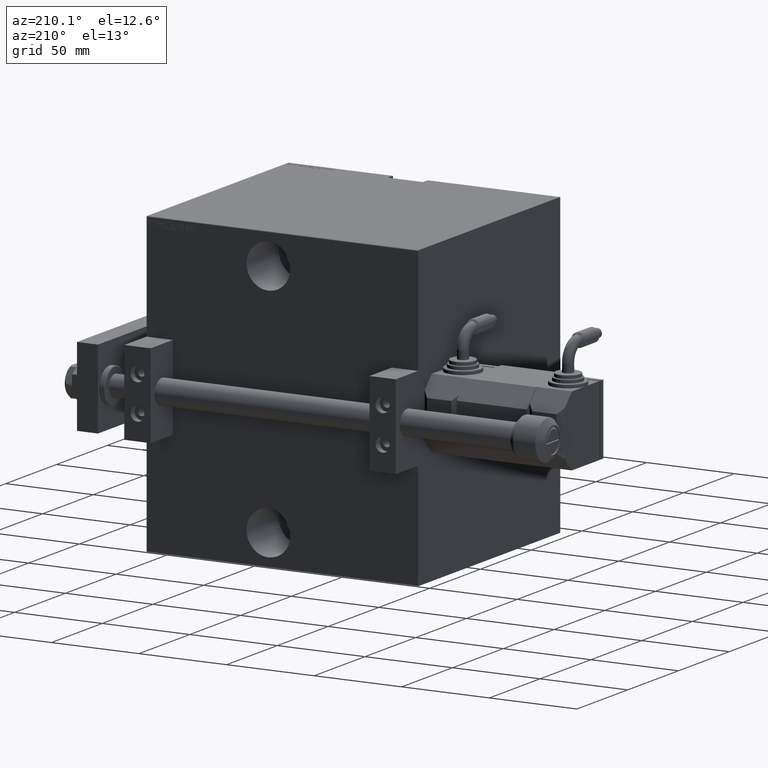
[diagram: clean part render]
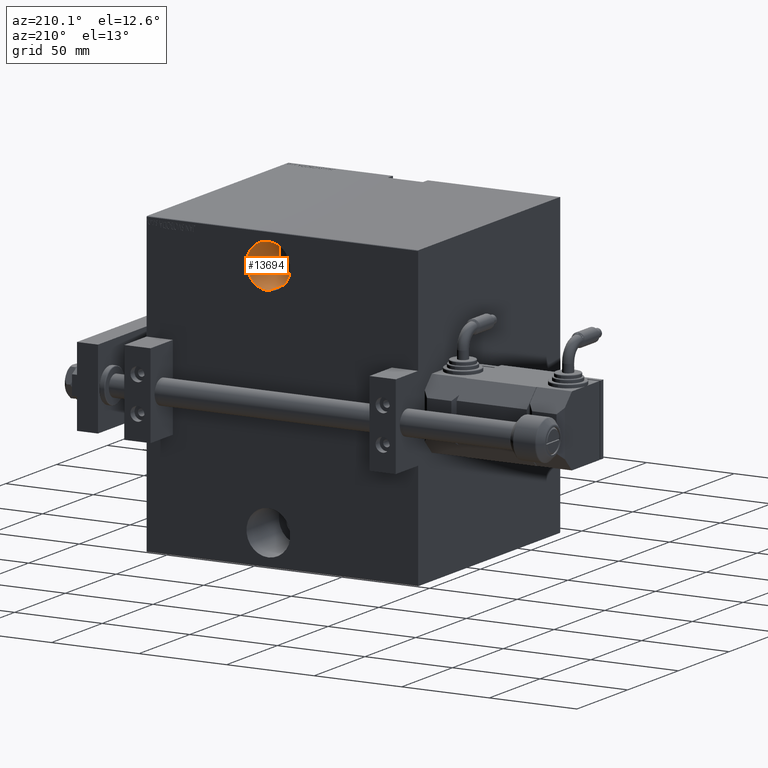
[diagram: same view with one face highlighted and labeled with its STEP entity id]
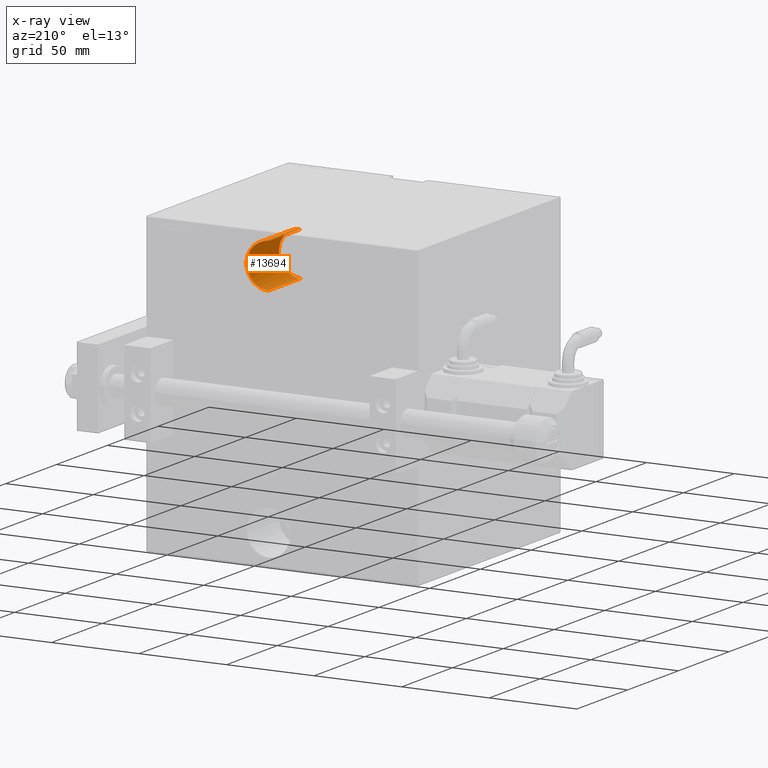
[diagram: x-ray of the same camera — body ghosted, the highlighted face saturated]
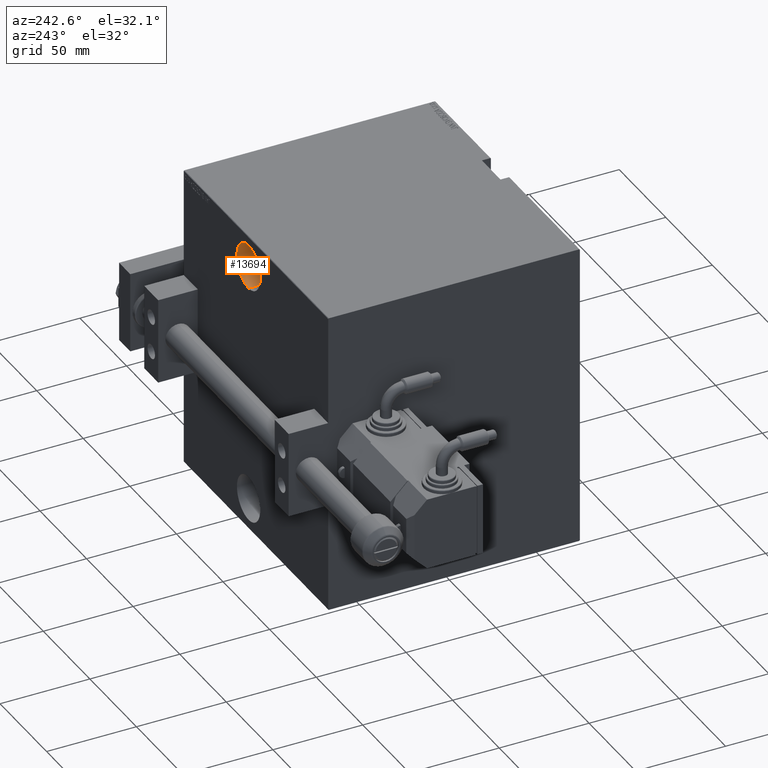
[diagram: same view with one face highlighted and labeled with its STEP entity id]
A machine part, auxiliary view. The second image highlights one B-rep face of the part: STEP entity #13694.
The next image is the same camera in x-ray: the body ghosted, the highlighted face saturated — about 0% of this face is hidden behind the body in this view.
A second angle (auxiliary view) of the same face is appended — the face is thin or edge-on in the first view.
In plain terms, the highlighted cylindrical surface (edge-blend (fillet) strip) has radius 12.5 mm, axis along (0, 1, 0).
Its self-contained STEP definition (entity closure, byte-faithful):
#128 = CARTESIAN_POINT ( 'NONE',  ( 69.50000000000002842, -37.99999999999997868, 80.00000000000000000 ) ) ;
#967 = DIRECTION ( 'NONE',  ( 0.000000000000000000, -1.000000000000000000, 1.963837897332234442E-16 ) ) ;
#1434 = CARTESIAN_POINT ( 'NONE',  ( 69.50000000000002842, -69.99999999999998579, 55.00000000000000711 ) ) ;
#5545 = VERTEX_POINT ( 'NONE', #1434 ) ;
#5713 = CYLINDRICAL_SURFACE ( 'NONE', #9772, 12.49999999999999645 ) ;
#6961 = CIRCLE ( 'NONE', #40049, 12.49999999999999645 ) ;
#7380 = AXIS2_PLACEMENT_3D ( 'NONE', #35563, #967, #16364 ) ;
#7459 = DIRECTION ( 'NONE',  ( -0.000000000000000000, -1.000000000000000000, 1.963837897332234442E-16 ) ) ;
#8992 = CIRCLE ( 'NONE', #7380, 12.49999999999999645 ) ;
#9585 = LINE ( 'NONE', #24504, #12974 ) ;
#9667 = DIRECTION ( 'NONE',  ( 0.000000000000000000, 0.000000000000000000, -1.000000000000000000 ) ) ;
#9765 = FACE_OUTER_BOUND ( 'NONE', #37094, .T. ) ;
#9772 = AXIS2_PLACEMENT_3D ( 'NONE', #21136, #40834, #25174 ) ;
#10671 = CARTESIAN_POINT ( 'NONE',  ( 69.50000000000002842, -37.99999999999997868, 80.00000000000000000 ) ) ;
#12974 = VECTOR ( 'NONE', #16428, 1000.000000000000000 ) ;
#13694 = ADVANCED_FACE ( 'NONE', ( #9765 ), #5713, .F. ) ;
#14443 = EDGE_CURVE ( 'NONE', #36404, #35383, #8992, .T. ) ;
#16364 = DIRECTION ( 'NONE',  ( 0.000000000000000000, 0.000000000000000000, -1.000000000000000000 ) ) ;
#16428 = DIRECTION ( 'NONE',  ( -0.000000000000000000, -1.000000000000000000, 1.963837897332234442E-16 ) ) ;
#20422 = VECTOR ( 'NONE', #7459, 1000.000000000000000 ) ;
#21136 = CARTESIAN_POINT ( 'NONE',  ( 69.50000000000002842, -37.99999999999997868, 67.50000000000000000 ) ) ;
#24504 = CARTESIAN_POINT ( 'NONE',  ( 69.50000000000002842, -37.99999999999997868, 55.00000000000000711 ) ) ;
#25174 = DIRECTION ( 'NONE',  ( 0.000000000000000000, 0.000000000000000000, -1.000000000000000000 ) ) ;
#25274 = CARTESIAN_POINT ( 'NONE',  ( 69.50000000000002842, -69.99999999999998579, 80.00000000000000000 ) ) ;
#25330 = CARTESIAN_POINT ( 'NONE',  ( 69.50000000000002842, -37.99999999999997868, 55.00000000000000711 ) ) ;
#31411 = VERTEX_POINT ( 'NONE', #25274 ) ;
#33645 = DIRECTION ( 'NONE',  ( 0.000000000000000000, -1.000000000000000000, 1.963837897332234442E-16 ) ) ;
#34730 = LINE ( 'NONE', #128, #20422 ) ;
#35153 = EDGE_CURVE ( 'NONE', #31411, #5545, #6961, .T. ) ;
#35383 = VERTEX_POINT ( 'NONE', #25330 ) ;
#35563 = CARTESIAN_POINT ( 'NONE',  ( 69.50000000000002842, -37.99999999999997868, 67.50000000000000000 ) ) ;
#36404 = VERTEX_POINT ( 'NONE', #10671 ) ;
#37094 = EDGE_LOOP ( 'NONE', ( #44766, #48687, #48453, #47319 ) ) ;
#39736 = EDGE_CURVE ( 'NONE', #35383, #5545, #9585, .T. ) ;
#40049 = AXIS2_PLACEMENT_3D ( 'NONE', #41474, #33645, #9667 ) ;
#40834 = DIRECTION ( 'NONE',  ( -0.000000000000000000, -1.000000000000000000, 1.963837897332234442E-16 ) ) ;
#41474 = CARTESIAN_POINT ( 'NONE',  ( 69.50000000000002842, -69.99999999999998579, 67.50000000000000000 ) ) ;
#44766 = ORIENTED_EDGE ( 'NONE', *, *, #14443, .F. ) ;
#47319 = ORIENTED_EDGE ( 'NONE', *, *, #39736, .F. ) ;
#48010 = EDGE_CURVE ( 'NONE', #36404, #31411, #34730, .T. ) ;
#48453 = ORIENTED_EDGE ( 'NONE', *, *, #35153, .T. ) ;
#48687 = ORIENTED_EDGE ( 'NONE', *, *, #48010, .T. ) ;